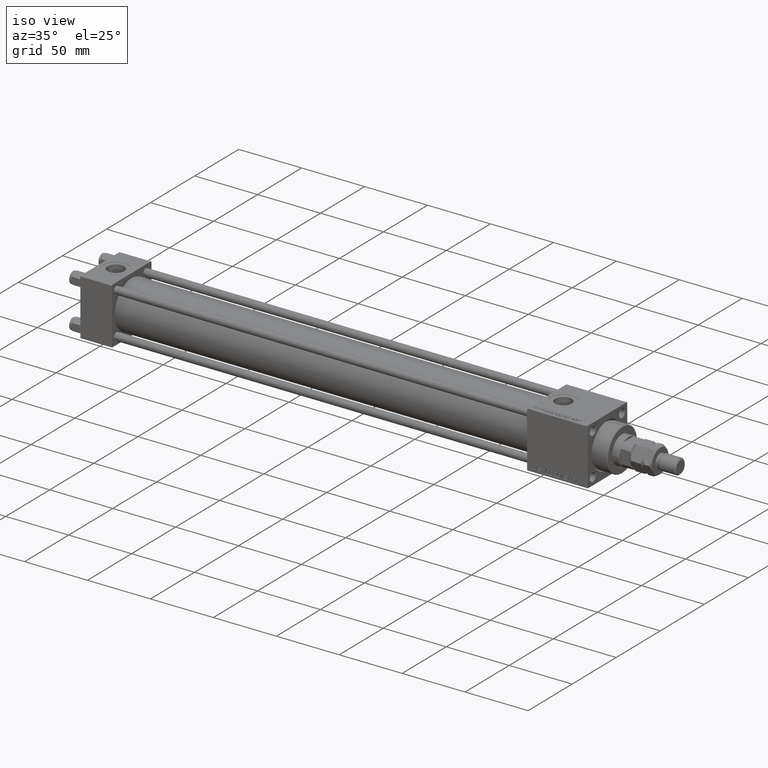
[diagram: clean part render]
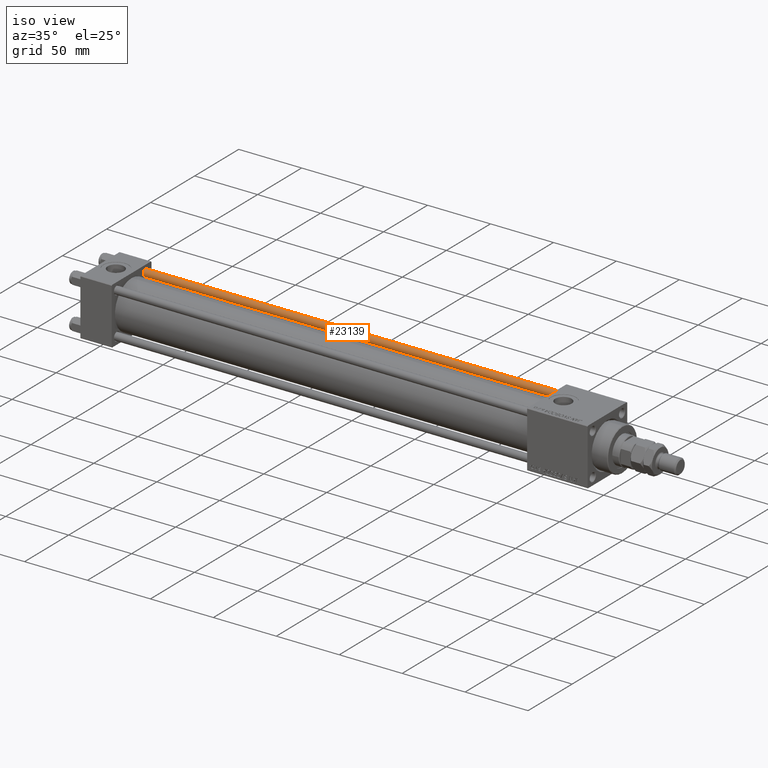
[diagram: same view with one face highlighted and labeled with its STEP entity id]
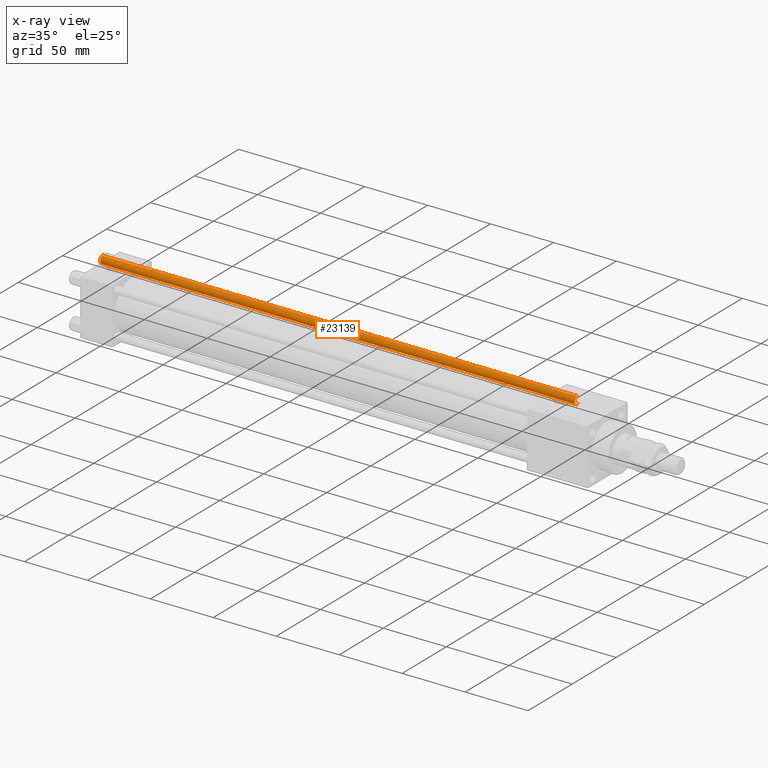
[diagram: x-ray of the same camera — body ghosted, the highlighted face saturated]
A machine part, iso view. The second image highlights one B-rep face of the part: STEP entity #23139.
The next image is the same camera in x-ray: the body ghosted, the highlighted face saturated — about 0% of this face is hidden behind the body in this view.
In plain terms, the highlighted cylindrical surface (edge-blend (fillet) strip) has radius 3 mm, axis along (-1, 0, 0).
Its self-contained STEP definition (entity closure, byte-faithful):
#503 = ORIENTED_EDGE ( 'NONE', *, *, #37951, .F. ) ;
#3514 = CARTESIAN_POINT ( 'NONE',  ( 3.000000000000000444, 3.673940397442060361E-16, 377.5000000000000000 ) ) ;
#4031 = AXIS2_PLACEMENT_3D ( 'NONE', #20576, #45967, #36544 ) ;
#5003 = CARTESIAN_POINT ( 'NONE',  ( -3.000000000000000444, 0.000000000000000000, 0.5000000000000004441 ) ) ;
#7058 = AXIS2_PLACEMENT_3D ( 'NONE', #27850, #52454, #10856 ) ;
#10856 = DIRECTION ( 'NONE',  ( 1.000000000000000000, 0.000000000000000000, 0.000000000000000000 ) ) ;
#12980 = EDGE_LOOP ( 'NONE', ( #503, #52687, #22046, #27406 ) ) ;
#13677 = CARTESIAN_POINT ( 'NONE',  ( 0.000000000000000000, 0.000000000000000000, 378.0000000000000000 ) ) ;
#14882 = CARTESIAN_POINT ( 'NONE',  ( -3.000000000000000444, 0.000000000000000000, 378.0000000000000000 ) ) ;
#15305 = VERTEX_POINT ( 'NONE', #5003 ) ;
#17738 = FACE_OUTER_BOUND ( 'NONE', #12980, .T. ) ;
#18154 = EDGE_CURVE ( 'NONE', #15305, #34425, #51084, .T. ) ;
#20576 = CARTESIAN_POINT ( 'NONE',  ( 0.000000000000000000, 0.000000000000000000, 377.5000000000000000 ) ) ;
#22046 = ORIENTED_EDGE ( 'NONE', *, *, #26302, .T. ) ;
#22681 = AXIS2_PLACEMENT_3D ( 'NONE', #13677, #30145, #46644 ) ;
#23139 = ADVANCED_FACE ( 'NONE', ( #17738 ), #42589, .T. ) ;
#26302 = EDGE_CURVE ( 'NONE', #41348, #15305, #27286, .T. ) ;
#27286 = LINE ( 'NONE', #14882, #47835 ) ;
#27406 = ORIENTED_EDGE ( 'NONE', *, *, #18154, .T. ) ;
#27789 = CARTESIAN_POINT ( 'NONE',  ( -3.000000000000000444, 0.000000000000000000, 377.5000000000000000 ) ) ;
#27850 = CARTESIAN_POINT ( 'NONE',  ( 0.000000000000000000, 0.000000000000000000, 0.5000000000000004441 ) ) ;
#28061 = LINE ( 'NONE', #28595, #28173 ) ;
#28173 = VECTOR ( 'NONE', #44559, 1000.000000000000000 ) ;
#28595 = CARTESIAN_POINT ( 'NONE',  ( 3.000000000000000444, 3.673940397442060361E-16, 378.0000000000000000 ) ) ;
#30145 = DIRECTION ( 'NONE',  ( -0.000000000000000000, -0.000000000000000000, -1.000000000000000000 ) ) ;
#30667 = VERTEX_POINT ( 'NONE', #3514 ) ;
#32496 = CIRCLE ( 'NONE', #4031, 3.000000000000000444 ) ;
#34425 = VERTEX_POINT ( 'NONE', #39426 ) ;
#36544 = DIRECTION ( 'NONE',  ( 1.000000000000000000, 0.000000000000000000, 0.000000000000000000 ) ) ;
#37951 = EDGE_CURVE ( 'NONE', #30667, #34425, #28061, .T. ) ;
#39426 = CARTESIAN_POINT ( 'NONE',  ( 3.000000000000000444, 3.673940397442060361E-16, 0.5000000000000004441 ) ) ;
#39673 = EDGE_CURVE ( 'NONE', #30667, #41348, #32496, .T. ) ;
#41348 = VERTEX_POINT ( 'NONE', #27789 ) ;
#42589 = CYLINDRICAL_SURFACE ( 'NONE', #22681, 3.000000000000000444 ) ;
#44559 = DIRECTION ( 'NONE',  ( -0.000000000000000000, -0.000000000000000000, -1.000000000000000000 ) ) ;
#44586 = DIRECTION ( 'NONE',  ( -0.000000000000000000, -0.000000000000000000, -1.000000000000000000 ) ) ;
#45967 = DIRECTION ( 'NONE',  ( 0.000000000000000000, 0.000000000000000000, -1.000000000000000000 ) ) ;
#46644 = DIRECTION ( 'NONE',  ( -1.000000000000000000, 0.000000000000000000, 0.000000000000000000 ) ) ;
#47835 = VECTOR ( 'NONE', #44586, 1000.000000000000000 ) ;
#51084 = CIRCLE ( 'NONE', #7058, 3.000000000000000444 ) ;
#52454 = DIRECTION ( 'NONE',  ( -0.000000000000000000, -0.000000000000000000, 1.000000000000000000 ) ) ;
#52687 = ORIENTED_EDGE ( 'NONE', *, *, #39673, .T. ) ;